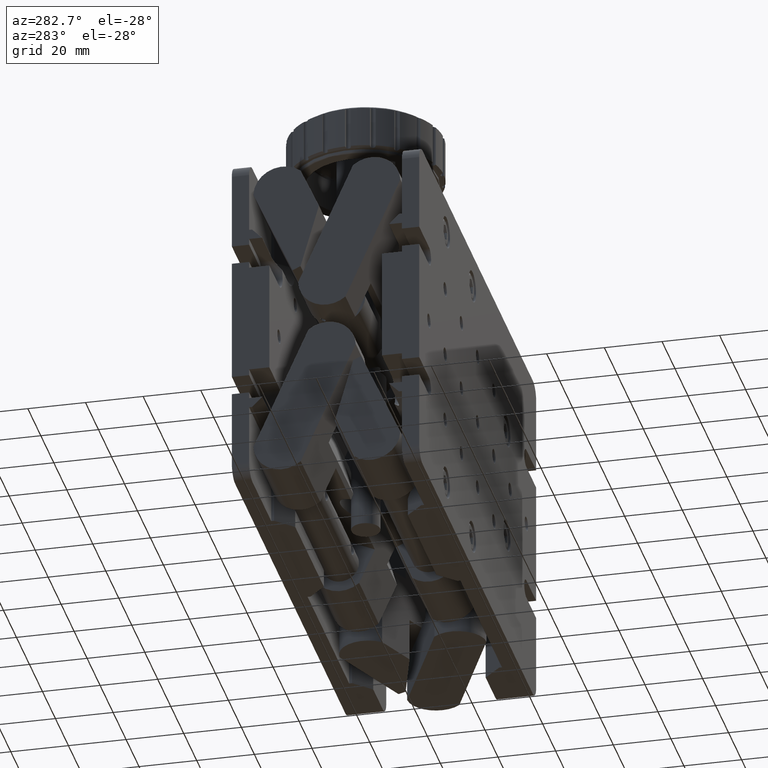
[diagram: clean part render]
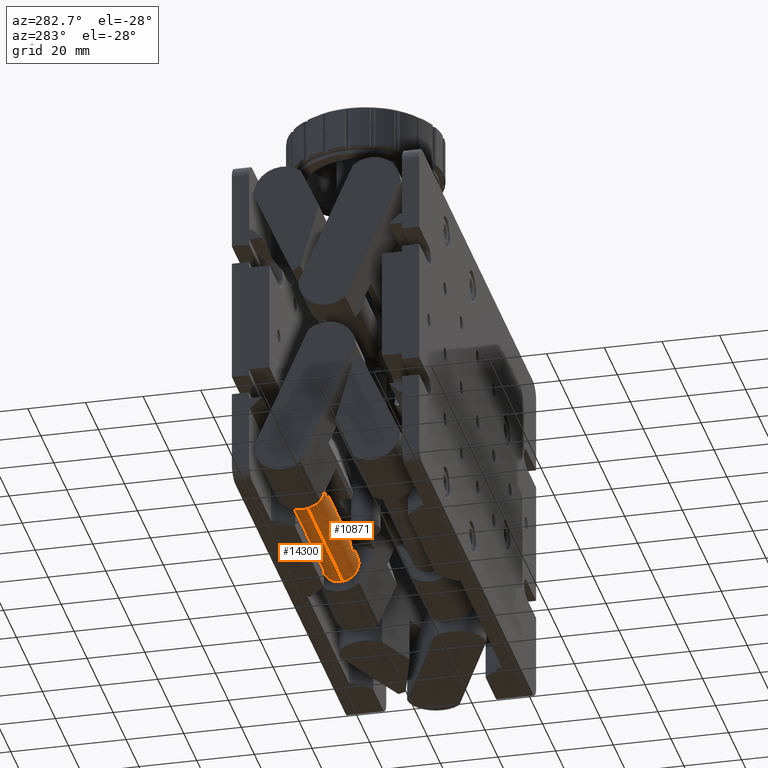
[diagram: same view with one multi-face feature highlighted, each face labeled with its STEP entity id]
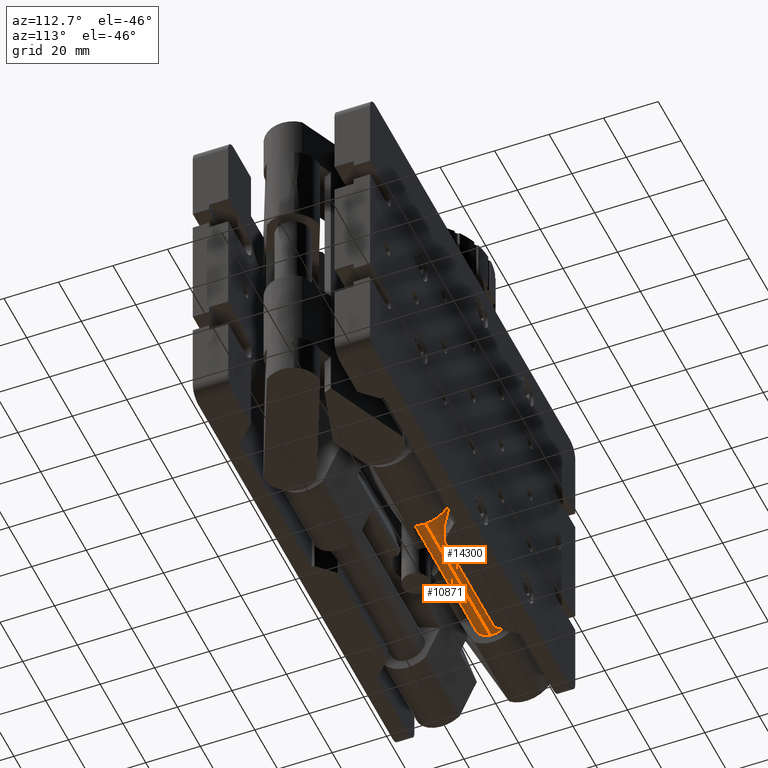
[diagram: same view with one multi-face feature highlighted, each face labeled with its STEP entity id]
A machine part, auxiliary view. The highlighted faces form ONE feature: a constant-radius fillet chain: 2 tangent blend faces with common blend radius 6.35 mm. The faces share edges in the B-rep.
A second angle (auxiliary view) of the same feature is appended — it is thin or edge-on in the first view.
Their STEP definitions:
[1] entity #14300 (Cylinder):
#2969 = FACE_OUTER_BOUND ( 'NONE', #34986, .T. ) ;
#5307 = CARTESIAN_POINT ( 'NONE',  ( 21.99999999999979700, 48.00000000000005700, -47.99999999999988600 ) ) ;
#6997 = ORIENTED_EDGE ( 'NONE', *, *, #25386, .T. ) ;
#7117 = CARTESIAN_POINT ( 'NONE',  ( 21.99999999999979700, 48.00000000000005700, -47.99999999999988600 ) ) ;
#7192 = CIRCLE ( 'NONE', #14413, 6.350000000000049400 ) ;
#13621 = CYLINDRICAL_SURFACE ( 'NONE', #18186, 6.350000000000049400 ) ;
#14300 = ADVANCED_FACE ( 'NONE', ( #2969 ), #13621, .T. ) ;
#14413 = AXIS2_PLACEMENT_3D ( 'NONE', #7117, #46059, #16871 ) ;
#14857 = DIRECTION ( 'NONE',  ( 5.463695987328484000E-016, -0.1228126585226402400, -0.9924298720345943200 ) ) ;
#14949 = ORIENTED_EDGE ( 'NONE', *, *, #59921, .F. ) ;
#16871 = DIRECTION ( 'NONE',  ( -5.463695987328484000E-016, 0.1228126585226402400, 0.9924298720345943200 ) ) ;
#17850 = CIRCLE ( 'NONE', #49610, 6.350000000000049400 ) ;
#18186 = AXIS2_PLACEMENT_3D ( 'NONE', #5307, #53418, #14857 ) ;
#18512 = EDGE_CURVE ( 'NONE', #30321, #61815, #7192, .T. ) ;
#21261 = DIRECTION ( 'NONE',  ( 0.0000000000000000000, 0.1228126585226402400, 0.9924298720345943200 ) ) ;
#21475 = DIRECTION ( 'NONE',  ( 1.000000000000000000, -1.110811301751914700E-015, -1.674603930630087100E-016 ) ) ;
#23963 = VECTOR ( 'NONE', #49804, 1000.000000000000000 ) ;
#25386 = EDGE_CURVE ( 'NONE', #30321, #30932, #33912, .T. ) ;
#27764 = CARTESIAN_POINT ( 'NONE',  ( -77.99999999999998600, 48.77986038161887400, -41.69807031258021400 ) ) ;
#29006 = ORIENTED_EDGE ( 'NONE', *, *, #18512, .F. ) ;
#30321 = VERTEX_POINT ( 'NONE', #37861 ) ;
#30932 = VERTEX_POINT ( 'NONE', #59776 ) ;
#32443 = CARTESIAN_POINT ( 'NONE',  ( 21.99999999999980100, 48.77986038161887400, -41.69807031258021400 ) ) ;
#33444 = VERTEX_POINT ( 'NONE', #27764 ) ;
#33912 = LINE ( 'NONE', #41490, #57476 ) ;
#34986 = EDGE_LOOP ( 'NONE', ( #14949, #29006, #6997, #55067 ) ) ;
#37861 = CARTESIAN_POINT ( 'NONE',  ( 21.99999999999979400, 47.22013961838134600, -54.30192968741956600 ) ) ;
#41490 = CARTESIAN_POINT ( 'NONE',  ( 21.99999999999980100, 47.22013961838128200, -54.30192968741960900 ) ) ;
#42230 = LINE ( 'NONE', #54718, #23963 ) ;
#43857 = EDGE_CURVE ( 'NONE', #30932, #33444, #17850, .T. ) ;
#45725 = CARTESIAN_POINT ( 'NONE',  ( -77.99999999999998600, 48.00000000000018500, -47.99999999999989300 ) ) ;
#46059 = DIRECTION ( 'NONE',  ( 1.000000000000000000, -1.110811301751914700E-015, -1.674603930630087100E-016 ) ) ;
#47019 = DIRECTION ( 'NONE',  ( -1.000000000000000000, 1.110811301751914700E-015, 1.674603930630087100E-016 ) ) ;
#49610 = AXIS2_PLACEMENT_3D ( 'NONE', #45725, #21475, #21261 ) ;
#49804 = DIRECTION ( 'NONE',  ( -1.000000000000000000, 1.110811301751914700E-015, 1.674603930630087100E-016 ) ) ;
#53418 = DIRECTION ( 'NONE',  ( -1.000000000000000000, 1.110811301751914700E-015, 1.674603930630087100E-016 ) ) ;
#54718 = CARTESIAN_POINT ( 'NONE',  ( 21.99999999999979400, 48.77986038161882500, -41.69807031258015700 ) ) ;
#55067 = ORIENTED_EDGE ( 'NONE', *, *, #43857, .T. ) ;
#57476 = VECTOR ( 'NONE', #47019, 1000.000000000000000 ) ;
#59776 = CARTESIAN_POINT ( 'NONE',  ( -77.99999999999998600, 47.22013961838134600, -54.30192968741956600 ) ) ;
#59921 = EDGE_CURVE ( 'NONE', #61815, #33444, #42230, .T. ) ;
#61815 = VERTEX_POINT ( 'NONE', #32443 ) ;
[2] entity #10871 (Cylinder):
#227 = CARTESIAN_POINT ( 'NONE',  ( -49.52687942487342100, 42.25746349511760500, -45.28800097528082300 ) ) ;
#430 = CARTESIAN_POINT ( 'NONE',  ( -48.81224761698960900, 41.86200521250216200, -49.62852466342504000 ) ) ;
#839 = CARTESIAN_POINT ( 'NONE',  ( -49.11405462580390200, 41.82871688291711400, -49.49744358142206800 ) ) ;
#976 = CARTESIAN_POINT ( 'NONE',  ( -8.330889331836326400, 41.89490742448862900, -49.74687404570814000 ) ) ;
#1048 = CARTESIAN_POINT ( 'NONE',  ( -50.16609701121573300, 41.97618162752145600, -45.98625872924385800 ) ) ;
#1398 = CARTESIAN_POINT ( 'NONE',  ( -7.999999999999979600, 41.89999103481694200, -49.76419687809716000 ) ) ;
#1959 = CARTESIAN_POINT ( 'NONE',  ( -6.741684770550938000, 42.34141860380567800, -45.11693668961221700 ) ) ;
#2273 = CARTESIAN_POINT ( 'NONE',  ( -46.74133409674859500, 41.80927179439705600, -49.41649464178979700 ) ) ;
#2439 = CARTESIAN_POINT ( 'NONE',  ( -9.651473749918144700, 42.21197705511827500, -45.38552564983681500 ) ) ;
#2488 = CARTESIAN_POINT ( 'NONE',  ( -47.99999999999998600, 42.51405432743046500, -44.80204751792417300 ) ) ;
#2822 = CARTESIAN_POINT ( 'NONE',  ( -6.472936302673844000, 42.25738037696929400, -45.28818928864060200 ) ) ;
#5967 = CARTESIAN_POINT ( 'NONE',  ( -49.98535884123638300, 42.06934802920719100, -45.72647654696763900 ) ) ;
#6227 = DIRECTION ( 'NONE',  ( 1.000000000000000000, -1.110811301751914700E-015, -1.674603930630087100E-016 ) ) ;
#6312 = CARTESIAN_POINT ( 'NONE',  ( -9.527332364027342800, 41.76953027650722600, -49.23001901913772800 ) ) ;
#6496 = CARTESIAN_POINT ( 'NONE',  ( -47.99999999999998600, 42.51405432743046500, -44.80204751792417300 ) ) ;
#6867 = CARTESIAN_POINT ( 'NONE',  ( -7.666223371891455000, 41.89999103481702700, -49.76419687809718100 ) ) ;
#7073 = CARTESIAN_POINT ( 'NONE',  ( -5.629659340777926100, 41.84752692146829400, -46.42109321616757000 ) ) ;
#7499 = CARTESIAN_POINT ( 'NONE',  ( -5.499869710560878900, 41.65768381209103000, -47.54607893882878500 ) ) ;
#7701 = CARTESIAN_POINT ( 'NONE',  ( -6.346100603356159600, 41.74886122626944000, -49.12250231518254400 ) ) ;
#7816 = CARTESIAN_POINT ( 'NONE',  ( -47.99999999999998600, 41.89999103481709900, -49.76419687809712400 ) ) ;
#9363 = ORIENTED_EDGE ( 'NONE', *, *, #46292, .T. ) ;
#10202 = CARTESIAN_POINT ( 'NONE',  ( -50.41873423448572600, 41.64920565812771300, -47.87250215792380500 ) ) ;
#10607 = CARTESIAN_POINT ( 'NONE',  ( -49.25692524904294300, 41.80952252165789000, -49.41763477417119800 ) ) ;
#10719 = CARTESIAN_POINT ( 'NONE',  ( -7.999999999999979600, 41.89999103481694200, -49.76419687809716000 ) ) ;
#10753 = CARTESIAN_POINT ( 'NONE',  ( -10.37075980026385800, 41.84726379175448600, -46.42197979104621900 ) ) ;
#10871 = ADVANCED_FACE ( 'NONE', ( #17749, #53545, #44354 ), #42858, .T. ) ;
#11192 = CARTESIAN_POINT ( 'NONE',  ( -10.41873423448571100, 41.64920565812766300, -47.87250215792390400 ) ) ;
#11306 = CARTESIAN_POINT ( 'NONE',  ( -77.99999999999998600, 48.00000000000018500, -47.99999999999989300 ) ) ;
#11582 = CARTESIAN_POINT ( 'NONE',  ( -9.653833835539160200, 41.74887139321774800, -49.12249659539777000 ) ) ;
#11789 = CARTESIAN_POINT ( 'NONE',  ( -9.880683668030782100, 42.11800577269043100, -45.60441455004520600 ) ) ;
#12071 = CARTESIAN_POINT ( 'NONE',  ( -7.999999999999979600, 42.51405432743037200, -44.80204751792427200 ) ) ;
#12194 = CARTESIAN_POINT ( 'NONE',  ( -7.999999999999979600, 42.51405432743037200, -44.80204751792427200 ) ) ;
#12233 = CARTESIAN_POINT ( 'NONE',  ( -45.83417810377029900, 41.97632454386012300, -45.98585741509634800 ) ) ;
#13575 = ORIENTED_EDGE ( 'NONE', *, *, #19608, .T. ) ;
#13851 = CARTESIAN_POINT ( 'NONE',  ( 21.99999999999979700, 48.00000000000005700, -47.99999999999988600 ) ) ;
#14878 = CARTESIAN_POINT ( 'NONE',  ( -49.25693523691401800, 42.34182448652399000, -45.11612863000353000 ) ) ;
#16056 = CARTESIAN_POINT ( 'NONE',  ( -8.652656572108236700, 41.87602745269159500, -49.67948936493981200 ) ) ;
#16716 = CARTESIAN_POINT ( 'NONE',  ( -46.11698426590761800, 41.71109216972224200, -48.88678391860615600 ) ) ;
#17057 = CARTESIAN_POINT ( 'NONE',  ( -5.834178103770278200, 41.97632454386005900, -45.98585741509647600 ) ) ;
#17166 = CARTESIAN_POINT ( 'NONE',  ( -47.33933785096212400, 41.87875845684385500, -49.69453798968570600 ) ) ;
#17339 = CARTESIAN_POINT ( 'NONE',  ( -9.985358841236394100, 42.06934802920712000, -45.72647654696775300 ) ) ;
#17494 = CARTESIAN_POINT ( 'NONE',  ( -6.741334096748575500, 41.80927179439702700, -49.41649464178991000 ) ) ;
#17688 = VERTEX_POINT ( 'NONE', #41183 ) ;
#17749 = FACE_BOUND ( 'NONE', #39074, .T. ) ;
#19608 = EDGE_CURVE ( 'NONE', #33444, #30932, #30715, .T. ) ;
#20147 = ORIENTED_EDGE ( 'NONE', *, *, #45456, .F. ) ;
#20430 = CARTESIAN_POINT ( 'NONE',  ( -50.36977596346523700, 41.64826763188842300, -48.03298254576776600 ) ) ;
#20590 = B_SPLINE_CURVE_WITH_KNOTS ( 'NONE', 3,
 ( #44040, #29578, #44462, #58959, #430, #839, #10607, #49126, #59168, #24473, #34914, #20430, #10202, #25302, #34497, #59379, #34702, #44874, #30222, #48915, #1048, #5967, #44247, #29376, #227, #14878, #53861, #24687, #42114, #29094, #35465, #35831 ),
 .UNSPECIFIED., .F., .F.,
 ( 4, 2, 2, 2, 2, 2, 2, 2, 2, 2, 2, 2, 2, 2, 2, 4 ),
 ( 6.938893903907228400E-018, 0.0004935333955271223300, 0.0009870667910542377200, 0.001480600186581353100, 0.001974133582108468500, 0.002961200373162685000, 0.003454733768689789500, 0.003948267164216893700, 0.004441800559743999500, 0.004935333955271103600, 0.005428867350798208600, 0.005922400746325312700, 0.006415934141852417700, 0.006909467537379523600, 0.007403000932906627700, 0.007896534328433731800 ),
 .UNSPECIFIED. ) ;
#20998 = CARTESIAN_POINT ( 'NONE',  ( -10.24343682464200000, 41.93117342328432100, -46.12499210405091100 ) ) ;
#21344 = CARTESIAN_POINT ( 'NONE',  ( -6.883941069843641200, 41.82847879114658700, -49.49648428849383900 ) ) ;
#21406 = CARTESIAN_POINT ( 'NONE',  ( -10.49991556970791100, 41.67767455103805900, -47.38522523357949700 ) ) ;
#21451 = CARTESIAN_POINT ( 'NONE',  ( -46.88708970857080500, 42.38019064009237300, -45.04283788330890600 ) ) ;
#21555 = CARTESIAN_POINT ( 'NONE',  ( -6.887089708570785600, 42.38019064009225900, -45.04283788330899800 ) ) ;
#21613 = CARTESIAN_POINT ( 'NONE',  ( -9.256935236914007000, 42.34182448652389800, -45.11612863000362900 ) ) ;
#21666 = CARTESIAN_POINT ( 'NONE',  ( -46.34610060335617000, 41.74886122626945500, -49.12250231518244400 ) ) ;
#21945 = VERTEX_POINT ( 'NONE', #10719 ) ;
#21985 = CARTESIAN_POINT ( 'NONE',  ( -5.581832255286962600, 41.81015321950376100, -46.57367681931997100 ) ) ;
#22214 = CIRCLE ( 'NONE', #59067, 6.350000000000049400 ) ;
#23691 = B_SPLINE_CURVE_WITH_KNOTS ( 'NONE', 3,
 ( #1398, #26054, #976, #16056, #60162, #35473, #40779, #6312, #11582, #40368, #50515, #45649, #11192, #50110, #21406, #25226, #59304, #39947, #10753, #20998, #46504, #17339, #11789, #2439, #50747, #21613, #55645, #46293, #26476, #61035, #36318, #12194 ),
 .UNSPECIFIED., .F., .F.,
 ( 4, 2, 2, 2, 2, 2, 2, 2, 2, 2, 2, 2, 2, 2, 2, 4 ),
 ( 8.673617379884035500E-018, 0.0004935333955271103000, 0.0009870667910542119200, 0.001480600186581313200, 0.001974133582108415200, 0.002961200373162629500, 0.003454733768689736600, 0.003948267164216844200, 0.004441800559743951800, 0.004935333955271059400, 0.005428867350798167800, 0.005922400746325274600, 0.006415934141852382100, 0.006909467537379489700, 0.007403000932906598200, 0.007896534328433705800 ),
 .UNSPECIFIED. ) ;
#23963 = VECTOR ( 'NONE', #49804, 1000.000000000000000 ) ;
#24473 = CARTESIAN_POINT ( 'NONE',  ( -49.99602403878261500, 41.69246440777519800, -48.77066504634975500 ) ) ;
#24687 = CARTESIAN_POINT ( 'NONE',  ( -48.81106981871257500, 42.44432608294560100, -44.92404619007916000 ) ) ;
#25226 = CARTESIAN_POINT ( 'NONE',  ( -10.50008378125226100, 41.71815344701148800, -47.05758237456760900 ) ) ;
#25302 = CARTESIAN_POINT ( 'NONE',  ( -50.48364350886162600, 41.66401233632435500, -47.54822040966676200 ) ) ;
#25364 = DIRECTION ( 'NONE',  ( 0.0000000000000000000, 0.1228126585226402400, 0.9924298720345943200 ) ) ;
#25386 = EDGE_CURVE ( 'NONE', #30321, #30932, #33912, .T. ) ;
#26054 = CARTESIAN_POINT ( 'NONE',  ( -8.167030189063938300, 41.89999103481704900, -49.76419687809718100 ) ) ;
#26476 = CARTESIAN_POINT ( 'NONE',  ( -8.654950880980477400, 42.46989820386372100, -44.87882582608345700 ) ) ;
#26626 = CARTESIAN_POINT ( 'NONE',  ( -7.669271947036528500, 42.50495030258788600, -44.81752082017338500 ) ) ;
#26736 = CARTESIAN_POINT ( 'NONE',  ( -45.58183225528697600, 41.81015321950381000, -46.57367681931985000 ) ) ;
#26783 = ORIENTED_EDGE ( 'NONE', *, *, #44775, .T. ) ;
#26844 = CARTESIAN_POINT ( 'NONE',  ( -5.566734236520765000, 41.64385360538297900, -47.87852790737412800 ) ) ;
#26959 = CARTESIAN_POINT ( 'NONE',  ( -45.62965934077792700, 41.84752692146839300, -46.42109321616746300 ) ) ;
#27178 = CARTESIAN_POINT ( 'NONE',  ( -45.75572793458735500, 41.93063602831542600, -46.12684955401168500 ) ) ;
#27764 = CARTESIAN_POINT ( 'NONE',  ( -77.99999999999998600, 48.77986038161887400, -41.69807031258021400 ) ) ;
#28401 = ORIENTED_EDGE ( 'NONE', *, *, #59921, .T. ) ;
#28670 = VERTEX_POINT ( 'NONE', #6496 ) ;
#28788 = DIRECTION ( 'NONE',  ( 5.463695987328484000E-016, -0.1228126585226402400, -0.9924298720345943200 ) ) ;
#29094 = CARTESIAN_POINT ( 'NONE',  ( -48.32965012861092200, 42.50505400825056800, -44.81734031864704800 ) ) ;
#29376 = CARTESIAN_POINT ( 'NONE',  ( -49.65147374991815400, 42.21197705511836100, -45.38552564983673700 ) ) ;
#29578 = CARTESIAN_POINT ( 'NONE',  ( -48.16703018906395800, 41.89999103481718400, -49.76419687809713100 ) ) ;
#30222 = CARTESIAN_POINT ( 'NONE',  ( -50.37075980026386200, 41.84726379175455700, -46.42197979104609800 ) ) ;
#30321 = VERTEX_POINT ( 'NONE', #37861 ) ;
#30715 = CIRCLE ( 'NONE', #49950, 6.350000000000049400 ) ;
#30932 = VERTEX_POINT ( 'NONE', #59776 ) ;
#31232 = CARTESIAN_POINT ( 'NONE',  ( -45.50006543890455600, 41.71844610263174500, -47.05569582561912500 ) ) ;
#31442 = CARTESIAN_POINT ( 'NONE',  ( -45.51686148554308900, 41.74563082575790700, -46.89028507532140100 ) ) ;
#31577 = DIRECTION ( 'NONE',  ( -5.463695987328484000E-016, 0.1228126585226402400, 0.9924298720345943200 ) ) ;
#32101 = CARTESIAN_POINT ( 'NONE',  ( -45.75492541802464800, 41.65703452573051600, -48.33541333753491600 ) ) ;
#32443 = CARTESIAN_POINT ( 'NONE',  ( 21.99999999999980100, 48.77986038161887400, -41.69807031258021400 ) ) ;
#32652 = EDGE_LOOP ( 'NONE', ( #20147, #28401, #13575, #32886 ) ) ;
#32886 = ORIENTED_EDGE ( 'NONE', *, *, #25386, .F. ) ;
#33444 = VERTEX_POINT ( 'NONE', #27764 ) ;
#33912 = LINE ( 'NONE', #41490, #57476 ) ;
#34497 = CARTESIAN_POINT ( 'NONE',  ( -50.49991556970791600, 41.67767455103811600, -47.38522523357941200 ) ) ;
#34702 = CARTESIAN_POINT ( 'NONE',  ( -50.48340212734733300, 41.74528894017919400, -46.89220347587495800 ) ) ;
#34914 = CARTESIAN_POINT ( 'NONE',  ( -50.18168564052205500, 41.66154046900235400, -48.48867010515891000 ) ) ;
#35465 = CARTESIAN_POINT ( 'NONE',  ( -48.16443733595033200, 42.51405432743046500, -44.80204751792417300 ) ) ;
#35473 = CARTESIAN_POINT ( 'NONE',  ( -9.114054625803913000, 41.82871688291708500, -49.49744358142216100 ) ) ;
#35831 = CARTESIAN_POINT ( 'NONE',  ( -47.99999999999998600, 42.51405432743046500, -44.80204751792417300 ) ) ;
#35911 = VERTEX_POINT ( 'NONE', #12071 ) ;
#36036 = CARTESIAN_POINT ( 'NONE',  ( -7.339337850962092300, 41.87875845684381900, -49.69453798968581300 ) ) ;
#36153 = CARTESIAN_POINT ( 'NONE',  ( -45.83320405140202800, 41.66691535040668300, -48.48343643766055100 ) ) ;
#36318 = CARTESIAN_POINT ( 'NONE',  ( -8.164437335950331900, 42.51405432743036500, -44.80204751792427200 ) ) ;
#36462 = CARTESIAN_POINT ( 'NONE',  ( -6.014423404586959300, 42.06923468070617400, -45.72679541600711400 ) ) ;
#36682 = CARTESIAN_POINT ( 'NONE',  ( -7.189094222151397600, 42.44438516166893300, -44.92392965063950100 ) ) ;
#36903 = CARTESIAN_POINT ( 'NONE',  ( -6.116984265907591500, 41.71109216972221400, -48.88678391860624100 ) ) ;
#37016 = CARTESIAN_POINT ( 'NONE',  ( -46.47299035820972800, 41.76957126114917400, -49.23017499404306800 ) ) ;
#37861 = CARTESIAN_POINT ( 'NONE',  ( 21.99999999999979400, 47.22013961838134600, -54.30192968741956600 ) ) ;
#39074 = EDGE_LOOP ( 'NONE', ( #26783, #46175 ) ) ;
#39947 = CARTESIAN_POINT ( 'NONE',  ( -10.41865793853543200, 41.80974557514950600, -46.57543910753955900 ) ) ;
#40368 = CARTESIAN_POINT ( 'NONE',  ( -9.996024038782618200, 41.69246440777516200, -48.77066504634984800 ) ) ;
#40779 = CARTESIAN_POINT ( 'NONE',  ( -9.256925249042959400, 41.80952252165786100, -49.41763477417126900 ) ) ;
#41129 = CARTESIAN_POINT ( 'NONE',  ( -5.833204051402010900, 41.66691535040664700, -48.48343643766067100 ) ) ;
#41183 = CARTESIAN_POINT ( 'NONE',  ( -47.99999999999998600, 41.89999103481709900, -49.76419687809712400 ) ) ;
#41225 = CARTESIAN_POINT ( 'NONE',  ( -47.34540949299784500, 42.46992433427663400, -44.87878100120600100 ) ) ;
#41342 = CARTESIAN_POINT ( 'NONE',  ( -6.116893796905323200, 42.11695673760226600, -45.60694197139399400 ) ) ;
#41465 = CARTESIAN_POINT ( 'NONE',  ( -46.74168477055097500, 42.34141860380577800, -45.11693668961211000 ) ) ;
#41490 = CARTESIAN_POINT ( 'NONE',  ( 21.99999999999980100, 47.22013961838128200, -54.30192968741960900 ) ) ;
#41585 = CARTESIAN_POINT ( 'NONE',  ( 21.99999999999979700, 48.00000000000005700, -47.99999999999988600 ) ) ;
#41675 = CARTESIAN_POINT ( 'NONE',  ( -47.83570233669661300, 42.51405432743047200, -44.80204751792417300 ) ) ;
#42114 = CARTESIAN_POINT ( 'NONE',  ( -48.65495088098050800, 42.46989820386382800, -44.87882582608337900 ) ) ;
#42230 = LINE ( 'NONE', #54718, #23963 ) ;
#42858 = CYLINDRICAL_SURFACE ( 'NONE', #52677, 6.350000000000049400 ) ;
#43241 = B_SPLINE_CURVE_WITH_KNOTS ( 'NONE', 3,
 ( #50673, #55802, #26626, #60534, #36682, #21555, #1959, #2822, #60752, #41342, #36462, #17057, #55579, #7073, #21985, #51102, #56022, #7499, #26844, #60972, #41129, #46444, #36903, #7701, #46662, #17494, #21344, #36036, #6867, #56676 ),
 .UNSPECIFIED., .F., .F.,
 ( 4, 2, 2, 2, 2, 2, 2, 2, 2, 2, 2, 2, 2, 2, 4 ),
 ( 0.007896534328433705800, 0.008389648517973746800, 0.008882762707513789500, 0.009375876897053832300, 0.009868991086593873300, 0.01036210527613391400, 0.01085521946567395700, 0.01134833365521400000, 0.01184144784475404100, 0.01282767622383414500, 0.01332079041337420700, 0.01381390460291426900, 0.01430701879245432900, 0.01480013298199438900, 0.01578636136107451600 ),
 .UNSPECIFIED. ) ;
#43708 = EDGE_CURVE ( 'NONE', #28670, #17688, #46777, .T. ) ;
#44040 = CARTESIAN_POINT ( 'NONE',  ( -47.99999999999998600, 41.89999103481709900, -49.76419687809712400 ) ) ;
#44247 = CARTESIAN_POINT ( 'NONE',  ( -49.88068366803077000, 42.11800577269048100, -45.60441455004508500 ) ) ;
#44354 = FACE_OUTER_BOUND ( 'NONE', #32652, .T. ) ;
#44462 = CARTESIAN_POINT ( 'NONE',  ( -48.33088933183632500, 41.89490742448865000, -49.74687404570804000 ) ) ;
#44500 = EDGE_CURVE ( 'NONE', #35911, #21945, #43241, .T. ) ;
#44775 = EDGE_CURVE ( 'NONE', #17688, #28670, #20590, .T. ) ;
#44874 = CARTESIAN_POINT ( 'NONE',  ( -50.41865793853543900, 41.80974557514955600, -46.57543910753945900 ) ) ;
#45456 = EDGE_CURVE ( 'NONE', #61815, #30321, #22214, .T. ) ;
#45649 = CARTESIAN_POINT ( 'NONE',  ( -10.36977596346524800, 41.64826763188838800, -48.03298254576786500 ) ) ;
#45697 = CARTESIAN_POINT ( 'NONE',  ( -45.56673423652077300, 41.64385360538302900, -47.87852790737402100 ) ) ;
#45907 = CARTESIAN_POINT ( 'NONE',  ( -46.11689379690533700, 42.11695673760237200, -45.60694197139388700 ) ) ;
#46175 = ORIENTED_EDGE ( 'NONE', *, *, #43708, .T. ) ;
#46292 = EDGE_CURVE ( 'NONE', #21945, #35911, #23691, .T. ) ;
#46293 = CARTESIAN_POINT ( 'NONE',  ( -8.811069818712580200, 42.44432608294550800, -44.92404619007925200 ) ) ;
#46333 = CARTESIAN_POINT ( 'NONE',  ( -46.88394106984365800, 41.82847879114660100, -49.49648428849374000 ) ) ;
#46444 = CARTESIAN_POINT ( 'NONE',  ( -6.014436838676263400, 41.69400763336103200, -48.75903375423230600 ) ) ;
#46504 = CARTESIAN_POINT ( 'NONE',  ( -10.16609701121571500, 41.97618162752136300, -45.98625872924395700 ) ) ;
#46548 = CARTESIAN_POINT ( 'NONE',  ( -47.66927194703654900, 42.50495030258797900, -44.81752082017327900 ) ) ;
#46662 = CARTESIAN_POINT ( 'NONE',  ( -6.472990358209733200, 41.76957126114914600, -49.23017499404316800 ) ) ;
#46777 = B_SPLINE_CURVE_WITH_KNOTS ( 'NONE', 3,
 ( #2488, #41675, #46548, #41225, #50993, #21451, #41465, #55471, #55909, #45907, #61077, #12233, #27178, #26959, #26736, #31442, #31232, #61293, #45697, #32101, #36153, #60646, #16716, #21666, #37016, #2273, #46333, #17166, #51219, #7816 ),
 .UNSPECIFIED., .F., .F.,
 ( 4, 2, 2, 2, 2, 2, 2, 2, 2, 2, 2, 2, 2, 2, 4 ),
 ( 0.007896534328433731800, 0.008389648517973778000, 0.008882762707513825900, 0.009375876897053873900, 0.009868991086593920100, 0.01036210527613396600, 0.01085521946567401400, 0.01134833365521406200, 0.01184144784475410800, 0.01282767622383422200, 0.01332079041337426800, 0.01381390460291431400, 0.01430701879245436200, 0.01480013298199441000, 0.01578636136107448200 ),
 .UNSPECIFIED. ) ;
#47019 = DIRECTION ( 'NONE',  ( -1.000000000000000000, 1.110811301751914700E-015, 1.674603930630087100E-016 ) ) ;
#47182 = ORIENTED_EDGE ( 'NONE', *, *, #44500, .T. ) ;
#48915 = CARTESIAN_POINT ( 'NONE',  ( -50.24343682464201800, 41.93117342328441300, -46.12499210405082600 ) ) ;
#49126 = CARTESIAN_POINT ( 'NONE',  ( -49.52733236402733000, 41.76953027650725400, -49.23001901913764300 ) ) ;
#49804 = DIRECTION ( 'NONE',  ( -1.000000000000000000, 1.110811301751914700E-015, 1.674603930630087100E-016 ) ) ;
#49950 = AXIS2_PLACEMENT_3D ( 'NONE', #11306, #6227, #25364 ) ;
#50110 = CARTESIAN_POINT ( 'NONE',  ( -10.48364350886164200, 41.66401233632433300, -47.54822040966686800 ) ) ;
#50515 = CARTESIAN_POINT ( 'NONE',  ( -10.18168564052207100, 41.66154046900230400, -48.48867010515899500 ) ) ;
#50673 = CARTESIAN_POINT ( 'NONE',  ( -7.999999999999979600, 42.51405432743037200, -44.80204751792427200 ) ) ;
#50747 = CARTESIAN_POINT ( 'NONE',  ( -9.526879424873408600, 42.25746349511751300, -45.28800097528093700 ) ) ;
#50993 = CARTESIAN_POINT ( 'NONE',  ( -47.18909422215143900, 42.44438516166904700, -44.92392965063939400 ) ) ;
#51102 = CARTESIAN_POINT ( 'NONE',  ( -5.516861485543075500, 41.74563082575781400, -46.89028507532150800 ) ) ;
#51219 = CARTESIAN_POINT ( 'NONE',  ( -47.66622337189144800, 41.89999103481718400, -49.76419687809714500 ) ) ;
#52677 = AXIS2_PLACEMENT_3D ( 'NONE', #13851, #62250, #28788 ) ;
#52791 = EDGE_LOOP ( 'NONE', ( #9363, #47182 ) ) ;
#53545 = FACE_BOUND ( 'NONE', #52791, .T. ) ;
#53861 = CARTESIAN_POINT ( 'NONE',  ( -49.11132115277586500, 42.38055252505031200, -45.04216048615099800 ) ) ;
#54718 = CARTESIAN_POINT ( 'NONE',  ( 21.99999999999979400, 48.77986038161882500, -41.69807031258015700 ) ) ;
#55471 = CARTESIAN_POINT ( 'NONE',  ( -46.47293630267388000, 42.25738037696942200, -45.28818928864051000 ) ) ;
#55579 = CARTESIAN_POINT ( 'NONE',  ( -5.755727934587329600, 41.93063602831536200, -46.12684955401179800 ) ) ;
#55645 = CARTESIAN_POINT ( 'NONE',  ( -9.111321152775856200, 42.38055252505020600, -45.04216048615109000 ) ) ;
#55802 = CARTESIAN_POINT ( 'NONE',  ( -7.835702336696600800, 42.51405432743037900, -44.80204751792428700 ) ) ;
#55909 = CARTESIAN_POINT ( 'NONE',  ( -46.34760887965654800, 42.21165599619130400, -45.38619081624340600 ) ) ;
#56022 = CARTESIAN_POINT ( 'NONE',  ( -5.500065438904542200, 41.71844610263168100, -47.05569582561923200 ) ) ;
#56676 = CARTESIAN_POINT ( 'NONE',  ( -7.999999999999979600, 41.89999103481694200, -49.76419687809716000 ) ) ;
#57476 = VECTOR ( 'NONE', #47019, 1000.000000000000000 ) ;
#58959 = CARTESIAN_POINT ( 'NONE',  ( -48.65265657210823500, 41.87602745269163100, -49.67948936493972000 ) ) ;
#59067 = AXIS2_PLACEMENT_3D ( 'NONE', #41585, #60765, #31577 ) ;
#59168 = CARTESIAN_POINT ( 'NONE',  ( -49.65383383553914600, 41.74887139321777600, -49.12249659539767100 ) ) ;
#59304 = CARTESIAN_POINT ( 'NONE',  ( -10.48340212734732000, 41.74528894017912300, -46.89220347587505000 ) ) ;
#59379 = CARTESIAN_POINT ( 'NONE',  ( -50.50008378125226500, 41.71815344701154500, -47.05758237456750900 ) ) ;
#59776 = CARTESIAN_POINT ( 'NONE',  ( -77.99999999999998600, 47.22013961838134600, -54.30192968741956600 ) ) ;
#59921 = EDGE_CURVE ( 'NONE', #61815, #33444, #42230, .T. ) ;
#60162 = CARTESIAN_POINT ( 'NONE',  ( -8.812247616989623100, 41.86200521250212600, -49.62852466342512500 ) ) ;
#60534 = CARTESIAN_POINT ( 'NONE',  ( -7.345409492997819500, 42.46992433427652700, -44.87878100120610700 ) ) ;
#60646 = CARTESIAN_POINT ( 'NONE',  ( -46.01443683867626800, 41.69400763336105300, -48.75903375423220600 ) ) ;
#60752 = CARTESIAN_POINT ( 'NONE',  ( -6.347608879656523800, 42.21165599619120500, -45.38619081624350600 ) ) ;
#60765 = DIRECTION ( 'NONE',  ( 1.000000000000000000, -1.110811301751914700E-015, -1.674603930630087100E-016 ) ) ;
#60972 = CARTESIAN_POINT ( 'NONE',  ( -5.754925418024649600, 41.65703452573047400, -48.33541333753504400 ) ) ;
#61035 = CARTESIAN_POINT ( 'NONE',  ( -8.329650128610900600, 42.50505400825048200, -44.81734031864714000 ) ) ;
#61077 = CARTESIAN_POINT ( 'NONE',  ( -46.01442340458697100, 42.06923468070625200, -45.72679541600700800 ) ) ;
#61293 = CARTESIAN_POINT ( 'NONE',  ( -45.49986971056089400, 41.65768381209107900, -47.54607893882870000 ) ) ;
#61815 = VERTEX_POINT ( 'NONE', #32443 ) ;
#62250 = DIRECTION ( 'NONE',  ( -1.000000000000000000, 1.110811301751914700E-015, 1.674603930630087100E-016 ) ) ;